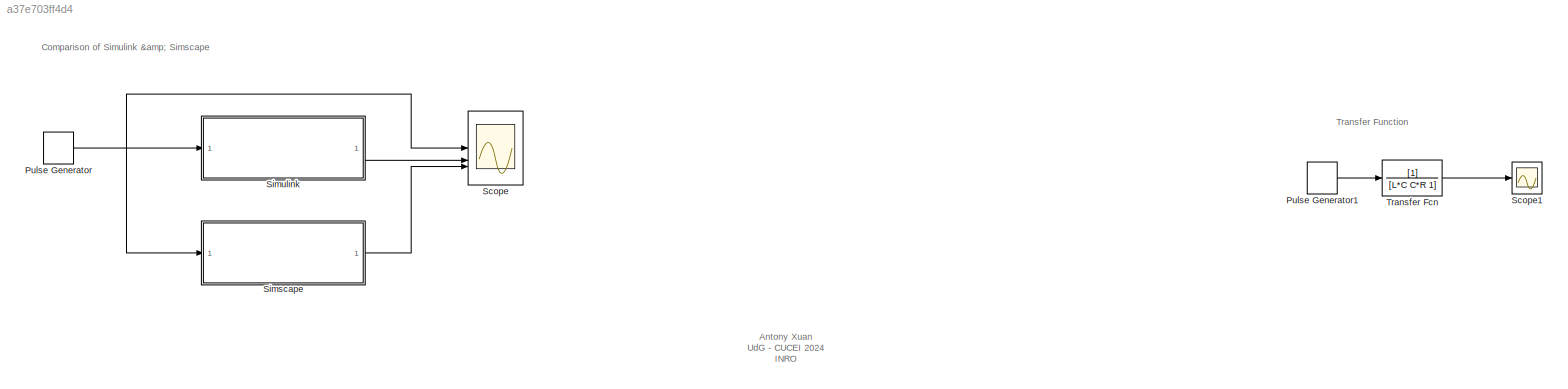
MODEL slx_a37e703ff4d4
KIND model
CONFIG AbsTol = auto
CONFIG EnableMultiTasking = off
CONFIG FixedStep = 0.00001
CONFIG InitFcn = R=120;\nL=6e-3;\nC=0.1e-6;
CONFIG MaxStep = auto
CONFIG MinStep = auto
CONFIG RelTol = 1e-3
CONFIG SampleTimeConstraint = Unconstrained
CONFIG SolverName = ode8
CONFIG StartTime = 0.0
CONFIG StopTime = 0.002
BLOCK [DiscretePulseGenerator] Pulse Generator
  Amplitude = 5
  Period = 0.002
  PulseType = Time based
  PulseWidth = 50
BLOCK [DiscretePulseGenerator] Pulse Generator1
  Amplitude = 5
  Period = 0.02
  PulseType = Time based
  PulseWidth = 50
BLOCK [Scope] Scope
  Floating = off
  NumInputPorts = 3
  ScopeSpecificationString = Simulink.scopes.TimeScopeBlockCfg('CurrentConfiguration', extmgr.ConfigurationSet(extmgr.Configuration('Core','General UI',true),extmgr.Configuration('Core','Source UI',true),extmgr.Configuration('Sources','WiredSimulink',true,'DataLogging',true,'DataLoggingSaveFormat','StructureWithTime'),extmgr.Configuration('Visuals','Time Domain',true,'SerializedDisplays',{struct('MinYLimReal','-2.5','MaxYLimR...<+1955ch>
BLOCK [Scope] Scope1
  Floating = off
  NumInputPorts = 1
  ScopeSpecificationString = Simulink.scopes.TimeScopeBlockCfg('CurrentConfiguration', extmgr.ConfigurationSet(extmgr.Configuration('Core','General UI',true),extmgr.Configuration('Core','Source UI',true),extmgr.Configuration('Sources','WiredSimulink',true,'DataLoggingVariableName','ScopeData1'),extmgr.Configuration('Visuals','Time Domain',true,'SerializedDisplays',{struct('MinYLimReal','-0.60511','MaxYLimReal','7.78356','YLab...<+1533ch>
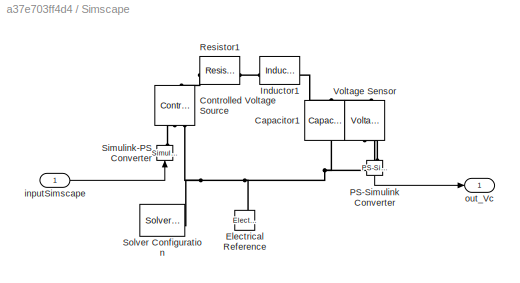
BLOCK [SubSystem] Simscape
BLOCK [Reference] Simscape/Capacitor1  REF=fl_lib/Electrical/Electrical Elements/Capacitor
  NameLocation = left
  SourceBlock = fl_lib/Electrical/Electrical Elements/Capacitor
  SourceType = Capacitor
BLOCK [Reference] Simscape/Controlled Voltage Source  REF=fl_lib/Electrical/Electrical Sources/Controlled Voltage
Source
  NameLocation = right
  SourceBlock = fl_lib/Electrical/Electrical Sources/Controlled Voltage\nSource
  SourceType = Controlled Voltage\nSource
BLOCK [Reference] Simscape/Electrical Reference  REF=fl_lib/Electrical/Electrical Elements/Electrical Reference
  NameLocation = right
  SourceBlock = fl_lib/Electrical/Electrical Elements/Electrical Reference
  SourceType = Electrical Reference
BLOCK [Reference] Simscape/Inductor1  REF=fl_lib/Electrical/Electrical Elements/Inductor
  SourceBlock = fl_lib/Electrical/Electrical Elements/Inductor
  SourceType = Inductor
BLOCK [Reference] Simscape/PS-Simulink Converter  REF=nesl_utility/PS-Simulink
Converter
  NameLocation = left
  SourceBlock = nesl_utility/PS-Simulink\nConverter
  SourceType = PS-Simulink\nConverter
BLOCK [Reference] Simscape/Resistor1  REF=fl_lib/Electrical/Electrical Elements/Resistor
  SourceBlock = fl_lib/Electrical/Electrical Elements/Resistor
  SourceType = Resistor
BLOCK [Reference] Simscape/Simulink-PS Converter  REF=nesl_utility/Simulink-PS
Converter
  NameLocation = right
  SourceBlock = nesl_utility/Simulink-PS\nConverter
  SourceType = Simulink-PS\nConverter
BLOCK [Reference] Simscape/Solver Configuration  REF=nesl_utility/Solver
Configuration
  SourceBlock = nesl_utility/Solver\nConfiguration
  SourceType = Solver\nConfiguration
BLOCK [Reference] Simscape/Voltage Sensor  REF=fl_lib/Electrical/Electrical Sensors/Voltage Sensor
  NameLocation = right
  SourceBlock = fl_lib/Electrical/Electrical Sensors/Voltage Sensor
  SourceType = Voltage Sensor
BLOCK [Inport] Simscape/inputSimscape
BLOCK [Outport] Simscape/out_Vc
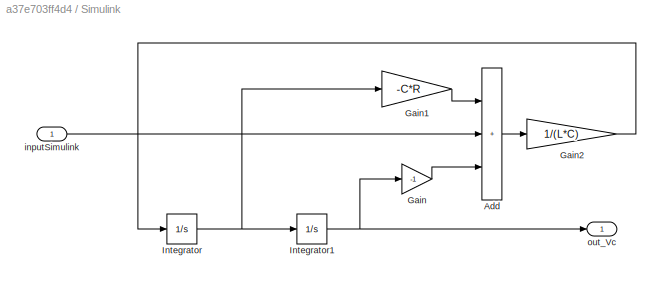
BLOCK [SubSystem] Simulink
BLOCK [Sum] Simulink/Add
  IconShape = rectangular
  Inputs = +++
BLOCK [Gain] Simulink/Gain
  Gain = -1
BLOCK [Gain] Simulink/Gain1
  Gain = -C*R
BLOCK [Gain] Simulink/Gain2
  Gain = 1/(L*C)
BLOCK [Integrator] Simulink/Integrator
BLOCK [Integrator] Simulink/Integrator1
BLOCK [Inport] Simulink/inputSimulink
BLOCK [Outport] Simulink/out_Vc
BLOCK [TransferFcn] Transfer Fcn
  Denominator = [L*C C*R 1]
ANNOTATION (root): Comparison of Simulink & Simscape
ANNOTATION (root): Antony Xuan UdG - CUCEI 2024 INRO
ANNOTATION (root): Transfer Function
LINE Pulse Generator1:1 -> Transfer Fcn:1
NET Pulse Generator:1 -> Scope:1, Simscape:1, Simulink:1
LINE Simscape/PS-Simulink Converter:1 -> Simscape/out_Vc:1
LINE Simscape/inputSimscape:1 -> Simscape/Simulink-PS Converter:1
LINE Simscape:1 -> Scope:3
LINE Simulink/Add:1 -> Simulink/Gain2:1
LINE Simulink/Gain1:1 -> Simulink/Add:1
LINE Simulink/Gain2:1 -> Simulink/Integrator:1
LINE Simulink/Gain:1 -> Simulink/Add:3
NET Simulink/Integrator1:1 -> Simulink/Gain:1, Simulink/out_Vc:1
NET Simulink/Integrator:1 -> Simulink/Gain1:1, Simulink/Integrator1:1
LINE Simulink/inputSimulink:1 -> Simulink/Add:2
LINE Simulink:1 -> Scope:2
LINE Transfer Fcn:1 -> Scope1:1
PNET net1: Simscape/Capacitor1:LConn1 -- Simscape/Inductor1:RConn1 -- Simscape/Voltage Sensor:LConn1
PNET net2: Simscape/Capacitor1:RConn1 -- Simscape/Controlled Voltage Source:RConn2 -- Simscape/Electrical Reference:LConn1 -- Simscape/Solver Configuration:RConn1 -- Simscape/Voltage Sensor:RConn2
PLINE Simscape/Controlled Voltage Source:LConn1 -- Simscape/Resistor1:LConn1
PLINE Simscape/Controlled Voltage Source:RConn1 -- Simscape/Simulink-PS Converter:RConn1
PLINE Simscape/Inductor1:LConn1 -- Simscape/Resistor1:RConn1
PLINE Simscape/PS-Simulink Converter:LConn1 -- Simscape/Voltage Sensor:RConn1
note: NET lines group one-source signal fan-out (src -> all destinations, sorted); 1:1 wires keep LINE; PNET lines group multi-terminal physical nets as a canonical sorted terminal list (undirected conserving connections); 2-terminal nets keep the pairwise PLINE form
